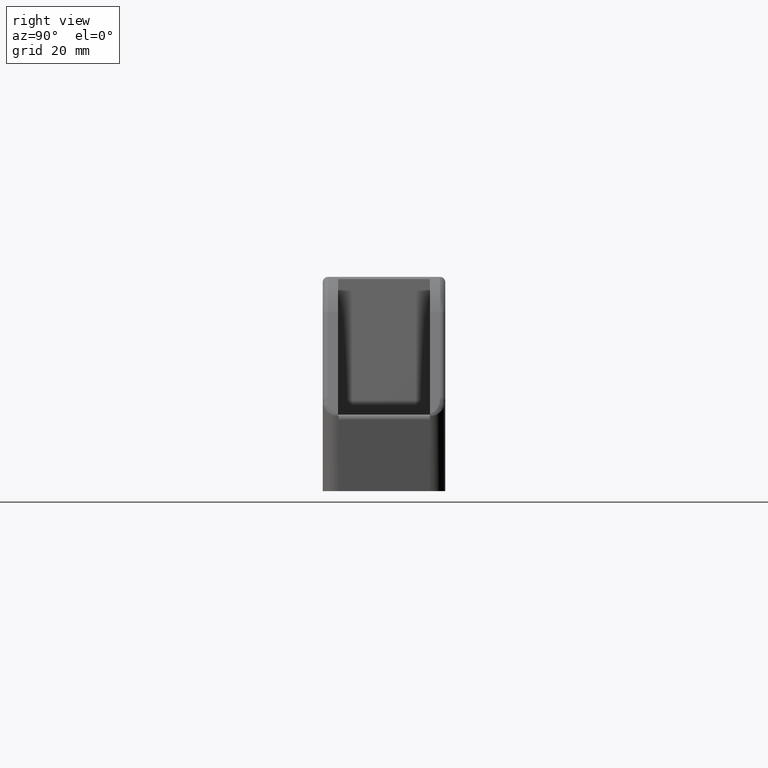
[diagram: clean part render]
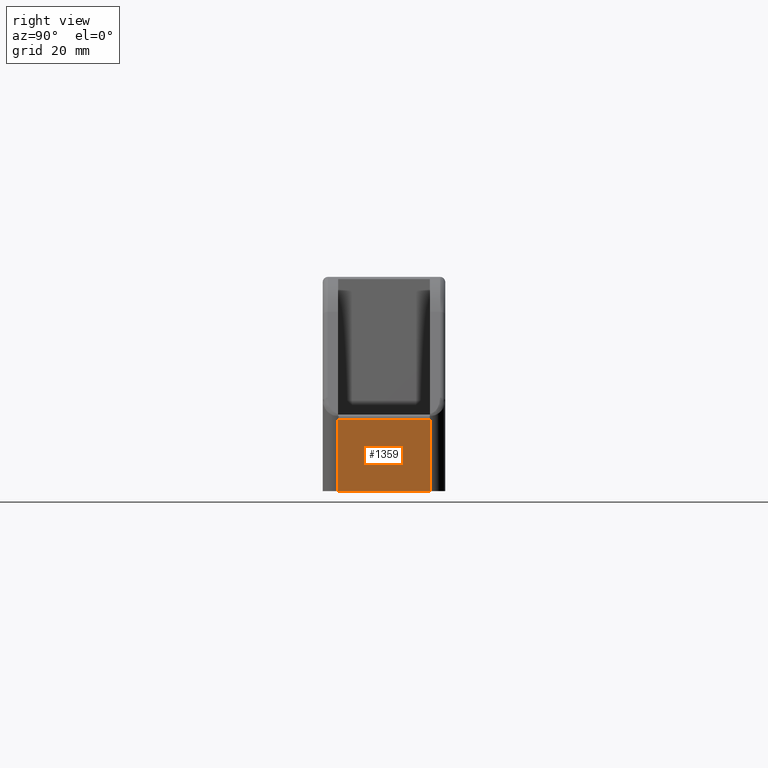
[diagram: same view with one face highlighted and labeled with its STEP entity id]
A machine part, right view. The second image highlights one B-rep face of the part: STEP entity #1359.
In plain terms, the highlighted planar face has unit normal (1, 0, 0).
Its self-contained STEP definition (entity closure, byte-faithful):
#419=CARTESIAN_POINT('',(125.999999999495710,8.999999999952220,-1.052491E-013));
#420=VERTEX_POINT('',#419);
#421=CARTESIAN_POINT('',(125.999999999495710,-8.999999999951804,-1.043610E-013));
#422=VERTEX_POINT('',#421);
#423=CARTESIAN_POINT('',(125.999999999495710,8.999999999952220,-1.052875E-013));
#424=DIRECTION('',(0.0,-1.0,0.0));
#425=VECTOR('',#424,17.999999999904023);
#426=LINE('',#423,#425);
#427=EDGE_CURVE('',#420,#422,#426,.T.);
#1283=CARTESIAN_POINT('',(125.999999999495690,8.999999999952220,13.999999999939890));
#1284=VERTEX_POINT('',#1283);
#1291=CARTESIAN_POINT('',(125.999999999495710,8.999999999952220,-1.052491E-013));
#1292=DIRECTION('',(0.0,0.0,1.0));
#1293=VECTOR('',#1292,13.999999999939996);
#1294=LINE('',#1291,#1293);
#1295=EDGE_CURVE('',#420,#1284,#1294,.T.);
#1336=CARTESIAN_POINT('',(125.999999999495710,11.999999999952220,-1.054712E-013));
#1337=DIRECTION('',(1.0,0.0,0.0));
#1338=DIRECTION('',(0.0,0.0,1.0));
#1339=AXIS2_PLACEMENT_3D('',#1336,#1337,#1338);
#1340=PLANE('',#1339);
#1341=ORIENTED_EDGE('',*,*,#1295,.T.);
#1342=CARTESIAN_POINT('',(125.999999999495690,-8.999999999951800,13.999999999939890));
#1343=VERTEX_POINT('',#1342);
#1344=CARTESIAN_POINT('',(125.999999999495690,9.000000000036380,13.999999999939892));
#1345=DIRECTION('',(0.0,-1.0,0.0));
#1346=VECTOR('',#1345,18.0);
#1347=LINE('',#1344,#1346);
#1348=EDGE_CURVE('',#1284,#1343,#1347,.T.);
#1349=ORIENTED_EDGE('',*,*,#1348,.T.);
#1350=CARTESIAN_POINT('',(125.999999999495710,-8.999999999951804,-1.043610E-013));
#1351=DIRECTION('',(0.0,0.0,1.0));
#1352=VECTOR('',#1351,13.999999999939996);
#1353=LINE('',#1350,#1352);
#1354=EDGE_CURVE('',#422,#1343,#1353,.T.);
#1355=ORIENTED_EDGE('',*,*,#1354,.F.);
#1356=ORIENTED_EDGE('',*,*,#427,.F.);
#1357=EDGE_LOOP('',(#1341,#1349,#1355,#1356));
#1358=FACE_OUTER_BOUND('',#1357,.T.);
#1359=ADVANCED_FACE('',(#1358),#1340,.T.);